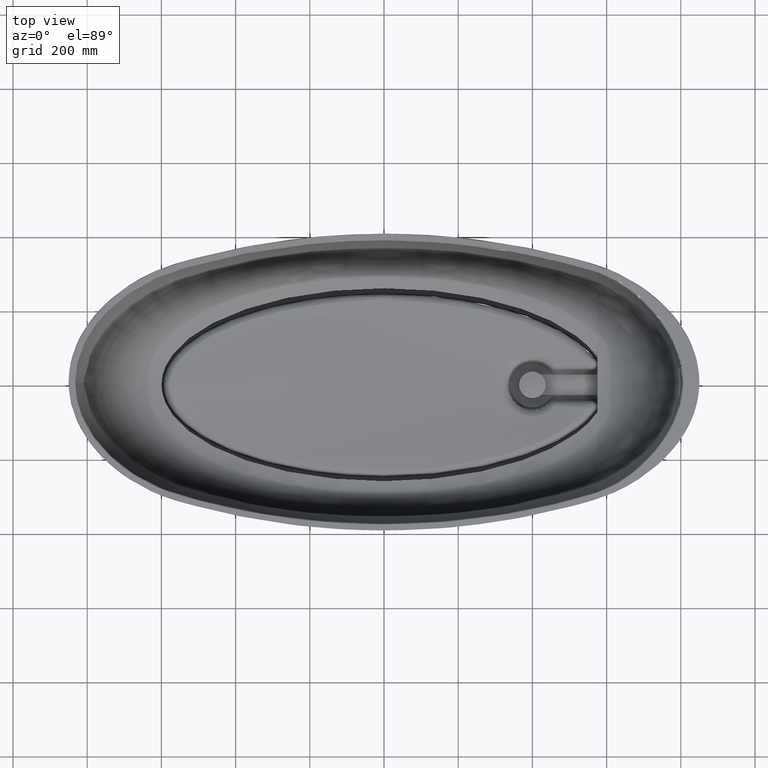
[diagram: clean part render]
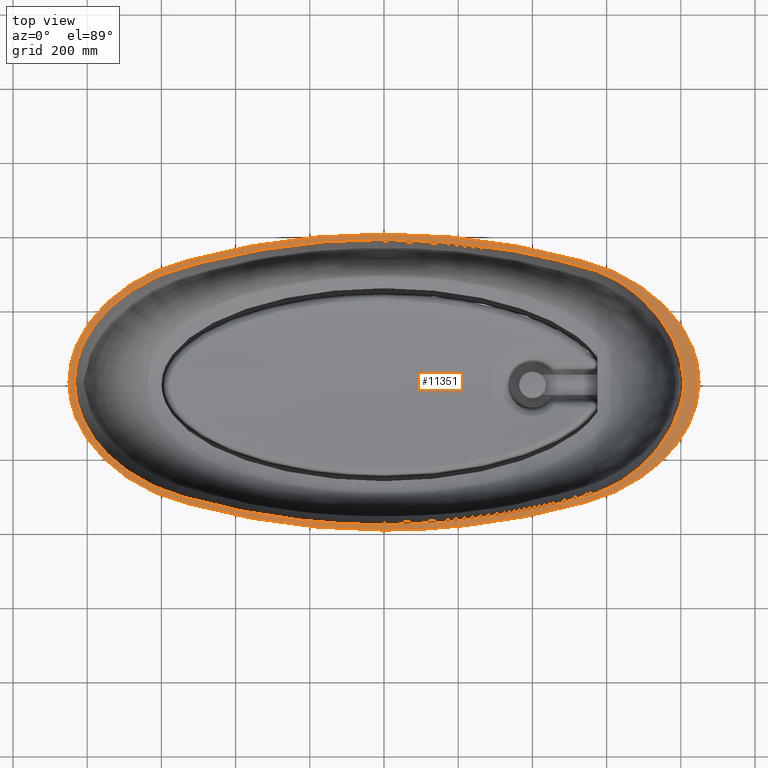
[diagram: same view with one face highlighted and labeled with its STEP entity id]
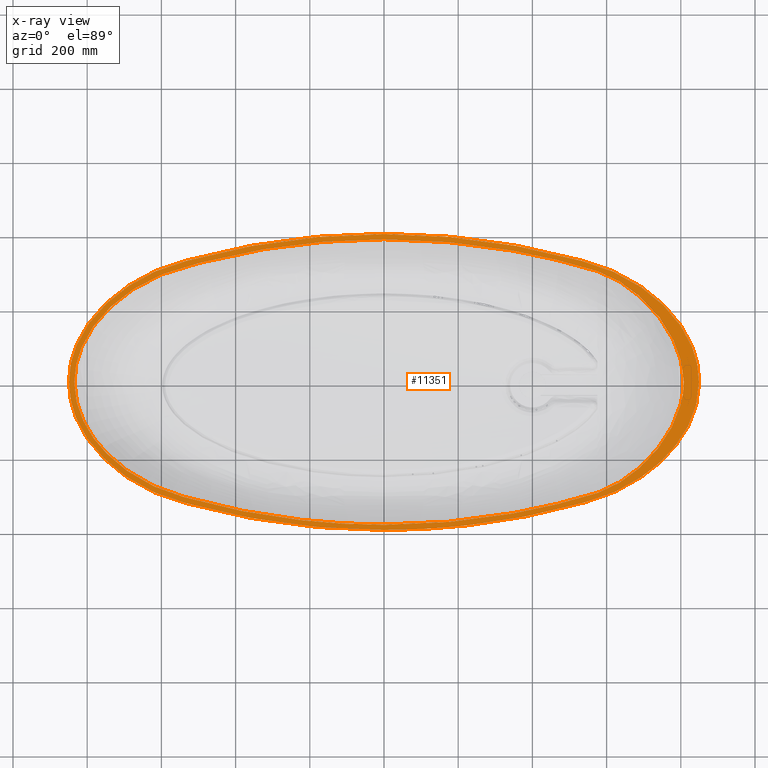
[diagram: x-ray of the same camera — body ghosted, the highlighted face saturated]
A machine part, top view. The second image highlights one B-rep face of the part: STEP entity #11351.
The next image is the same camera in x-ray: the body ghosted, the highlighted face saturated — about 0% of this face is hidden behind the body in this view.
In plain terms, the highlighted planar face has unit normal (0, 0, 1).
Its self-contained STEP definition (entity closure, byte-faithful):
#6839=(
BOUNDED_CURVE()
B_SPLINE_CURVE(3,(#442561,#442562,#442563,#442564,#442565,#442566,#442567,
#442568,#442569,#442570,#442571,#442572,#442573,#442574,#442575,#442576,
#442577,#442578,#442579,#442580,#442581,#442582,#442583,#442584,#442585,
#442586,#442587,#442588,#442589,#442590,#442591,#442592,#442593,#442594,
#442595,#442596),.UNSPECIFIED.,.F.,.F.)
B_SPLINE_CURVE_WITH_KNOTS((4,2,2,2,2,2,2,2,2,2,2,2,2,2,2,2,2,4),(-1.02250365814993,
-0.766877743612451,-0.639064786343709,-0.511251829074967,-0.479298589757782,
-0.463321970099189,-0.447345350440596,-0.415392111123411,-0.383438871806225,
-0.319532393171854,-0.287579153854669,-0.255625914537484,-0.191719435903113,
-0.159766196585927,-0.127812957268742,-0.0958597179515563,-0.0639064786343709,
0.),.UNSPECIFIED.)
CURVE()
GEOMETRIC_REPRESENTATION_ITEM()
RATIONAL_B_SPLINE_CURVE((1.,1.,1.,1.,1.,1.,1.,1.,1.,1.,1.,1.,1.,1.,1.,1.,
1.,1.,1.,1.,1.,1.,1.,1.,1.,1.,1.,1.,1.,1.,1.,1.,1.,1.,1.,1.))
REPRESENTATION_ITEM('')
);
#6843=(
BOUNDED_CURVE()
B_SPLINE_CURVE(3,(#442639,#442640,#442641,#442642,#442643,#442644,#442645,
#442646,#442647,#442648,#442649,#442650,#442651,#442652,#442653,#442654,
#442655,#442656,#442657,#442658,#442659,#442660,#442661,#442662,#442663,
#442664,#442665,#442666,#442667,#442668,#442669,#442670,#442671,#442672,
#442673,#442674),.UNSPECIFIED.,.F.,.F.)
B_SPLINE_CURVE_WITH_KNOTS((4,2,2,2,2,2,2,2,2,2,2,2,2,2,2,2,2,4),(-1.02250365814986,
-0.766877743612399,-0.639064786343665,-0.511251829074932,-0.479298589757749,
-0.463321970099157,-0.447345350440566,-0.415392111123382,-0.383438871806199,
-0.319532393171833,-0.287579153854649,-0.255625914537466,-0.191719435903099,
-0.159766196585916,-0.127812957268733,-0.0958597179515496,-0.0639064786343663,
2.22044604925031E-16),.UNSPECIFIED.)
CURVE()
GEOMETRIC_REPRESENTATION_ITEM()
RATIONAL_B_SPLINE_CURVE((1.,1.,1.,1.,1.,1.,1.,1.,1.,1.,1.,1.,1.,1.,1.,1.,
1.,1.,1.,1.,1.,1.,1.,1.,1.,1.,1.,1.,1.,1.,1.,1.,1.,1.,1.,1.))
REPRESENTATION_ITEM('')
);
#6846=(
BOUNDED_CURVE()
B_SPLINE_CURVE(3,(#442710,#442711,#442712,#442713,#442714,#442715,#442716,
#442717,#442718,#442719,#442720,#442721,#442722,#442723,#442724,#442725,
#442726,#442727,#442728,#442729,#442730,#442731,#442732,#442733,#442734,
#442735,#442736,#442737,#442738,#442739,#442740,#442741),.UNSPECIFIED.,
 .F.,.F.)
B_SPLINE_CURVE_WITH_KNOTS((4,2,2,2,2,2,2,2,2,2,2,2,2,2,2,4),(0.,0.255126123501164,
0.382689185251747,0.510252247002329,0.542143012439975,0.558088395158797,
0.57403377787762,0.637815308752911,0.669706074190557,0.701596839628202,
0.765378370503493,0.797269135941139,0.829159901378784,0.892941432254076,
0.956722963129367,1.02050449400466),.UNSPECIFIED.)
CURVE()
GEOMETRIC_REPRESENTATION_ITEM()
RATIONAL_B_SPLINE_CURVE((1.,1.,1.,1.,1.,1.,1.,1.,1.,1.,1.,1.,1.,1.,1.,1.,
1.,1.,1.,1.,1.,1.,1.,1.,1.,1.,1.,1.,1.,1.,1.,1.))
REPRESENTATION_ITEM('')
);
#6848=(
BOUNDED_CURVE()
B_SPLINE_CURVE(3,(#442774,#442775,#442776,#442777,#442778,#442779,#442780,
#442781,#442782,#442783,#442784,#442785,#442786,#442787,#442788,#442789,
#442790,#442791,#442792,#442793,#442794,#442795,#442796,#442797,#442798,
#442799,#442800,#442801,#442802,#442803,#442804,#442805),.UNSPECIFIED.,
 .F.,.F.)
B_SPLINE_CURVE_WITH_KNOTS((4,2,2,2,2,2,2,2,2,2,2,2,2,2,2,4),(-1.02050446318528,
-0.956722934233483,-0.892941405281683,-0.829159876329884,-0.797269111853984,
-0.765378347378084,-0.701596818426285,-0.669706053950385,-0.637815289474486,
-0.574033760522686,-0.558088378284736,-0.542142996046787,-0.510252231570887,
-0.382689173667288,-0.255126115763689,4.35083635785816E-11),
 .UNSPECIFIED.)
CURVE()
GEOMETRIC_REPRESENTATION_ITEM()
RATIONAL_B_SPLINE_CURVE((1.,1.,1.,1.,1.,1.,1.,1.,1.,1.,1.,1.,1.,1.,1.,1.,
1.,1.,1.,1.,1.,1.,1.,1.,1.,1.,1.,1.,1.,1.,1.,1.))
REPRESENTATION_ITEM('')
);
#6851=(
BOUNDED_CURVE()
B_SPLINE_CURVE(3,(#442841,#442842,#442843,#442844,#442845,#442846,#442847,
#442848,#442849,#442850,#442851,#442852,#442853,#442854,#442855,#442856,
#442857,#442858,#442859,#442860,#442861,#442862,#442863,#442864,#442865,
#442866,#442867,#442868,#442869,#442870,#442871,#442872),.UNSPECIFIED.,
 .F.,.F.)
B_SPLINE_CURVE_WITH_KNOTS((4,2,2,2,2,2,2,2,2,2,2,2,2,2,2,4),(-0.998006357168119,
-0.935630959845112,-0.904443261183608,-0.873255562522104,-0.810880165199097,
-0.779692466537593,-0.748504767876089,-0.686129370553082,-0.623753973230074,
-0.592566274568571,-0.576972425237819,-0.561378575907067,-0.49900317858406,
-0.374252383938045,-0.24950158929203,0.),.UNSPECIFIED.)
CURVE()
GEOMETRIC_REPRESENTATION_ITEM()
RATIONAL_B_SPLINE_CURVE((1.,1.,1.,1.,1.,1.,1.,1.,1.,1.,1.,1.,1.,1.,1.,1.,
1.,1.,1.,1.,1.,1.,1.,1.,1.,1.,1.,1.,1.,1.,1.,1.))
REPRESENTATION_ITEM('')
);
#6857=(
BOUNDED_CURVE()
B_SPLINE_CURVE(3,(#442974,#442975,#442976,#442977,#442978,#442979,#442980,
#442981,#442982,#442983,#442984,#442985,#442986,#442987,#442988,#442989,
#442990,#442991,#442992,#442993,#442994,#442995,#442996,#442997,#442998,
#442999,#443000,#443001,#443002,#443003,#443004,#443005,#443006,#443007),
 .UNSPECIFIED.,.F.,.F.)
B_SPLINE_CURVE_WITH_KNOTS((4,2,2,2,2,2,2,2,2,2,2,2,2,2,2,2,4),(-0.999648344078793,
-0.749736258035055,-0.624780215013186,-0.499824171991317,-0.46858516123585,
-0.437346150480382,-0.406107139724915,-0.374868128969448,-0.312390107458513,
-0.281151096703046,-0.249912085947579,-0.187434064436644,-0.156195053681177,
-0.12495604292571,-0.0937170321702423,-0.0624780214147751,9.61594692761025E-11),
 .UNSPECIFIED.)
CURVE()
GEOMETRIC_REPRESENTATION_ITEM()
RATIONAL_B_SPLINE_CURVE((1.,1.,1.,1.,1.,1.,1.,1.,1.,1.,1.,1.,1.,1.,1.,1.,
1.,1.,1.,1.,1.,1.,1.,1.,1.,1.,1.,1.,1.,1.,1.,1.,1.,1.))
REPRESENTATION_ITEM('')
);
#6860=(
BOUNDED_CURVE()
B_SPLINE_CURVE(3,(#443053,#443054,#443055,#443056,#443057,#443058,#443059,
#443060,#443061,#443062,#443063,#443064),.UNSPECIFIED.,.F.,.F.)
B_SPLINE_CURVE_WITH_KNOTS((4,2,2,2,2,4),(-0.584044535445331,-0.547541751979997,
-0.511038968514664,-0.438033401583998,-0.292022267722665,0.),
 .UNSPECIFIED.)
CURVE()
GEOMETRIC_REPRESENTATION_ITEM()
RATIONAL_B_SPLINE_CURVE((1.,1.,1.,1.,1.,1.,1.,1.,1.,1.,1.,1.))
REPRESENTATION_ITEM('')
);
#6864=(
BOUNDED_CURVE()
B_SPLINE_CURVE(3,(#443093,#443094,#443095,#443096,#443097,#443098,#443099,
#443100,#443101,#443102,#443103,#443104,#443105,#443106,#443107,#443108,
#443109,#443110,#443111,#443112,#443113,#443114),.UNSPECIFIED.,.F.,.F.)
B_SPLINE_CURVE_WITH_KNOTS((4,2,2,2,2,2,2,2,2,2,4),(-0.398289006919307,-0.348502881054393,
-0.323609818121937,-0.29871675518948,-0.248930629324567,-0.199144503459653,
-0.14935837759474,-0.0995722517298267,-0.07467918879737,-0.0497861258649134,
0.),.UNSPECIFIED.)
CURVE()
GEOMETRIC_REPRESENTATION_ITEM()
RATIONAL_B_SPLINE_CURVE((1.,1.,1.,1.,1.,1.,1.,1.,1.,1.,1.,1.,1.,1.,1.,1.,
1.,1.,1.,1.,1.,1.))
REPRESENTATION_ITEM('')
);
#7703=PLANE('',#34765);
#9118=FACE_BOUND('',#14215,.T.);
#11351=ADVANCED_FACE('',(#12725,#9118),#7703,.T.);
#12725=FACE_OUTER_BOUND('',#14214,.T.);
#14214=EDGE_LOOP('',(#21079,#21080,#21081,#21082));
#14215=EDGE_LOOP('',(#21083,#21084,#21085,#21086,#21087,#21088));
#21079=ORIENTED_EDGE('',*,*,#26153,.T.);
#21080=ORIENTED_EDGE('',*,*,#26146,.F.);
#21081=ORIENTED_EDGE('',*,*,#26155,.F.);
#21082=ORIENTED_EDGE('',*,*,#26150,.F.);
#21083=ORIENTED_EDGE('',*,*,#26166,.F.);
#21084=ORIENTED_EDGE('',*,*,#26172,.F.);
#21085=ORIENTED_EDGE('',*,*,#26177,.T.);
#21086=ORIENTED_EDGE('',*,*,#26176,.F.);
#21087=ORIENTED_EDGE('',*,*,#26169,.T.);
#21088=ORIENTED_EDGE('',*,*,#26158,.F.);
#26146=EDGE_CURVE('',#33926,#33927,#6839,.T.);
#26150=EDGE_CURVE('',#33930,#33931,#6843,.T.);
#26153=EDGE_CURVE('',#33930,#33927,#6846,.T.);
#26155=EDGE_CURVE('',#33931,#33926,#6848,.T.);
#26158=EDGE_CURVE('',#33934,#33935,#6851,.T.);
#26166=EDGE_CURVE('',#33941,#33934,#6857,.T.);
#26169=EDGE_CURVE('',#33943,#33935,#29667,.T.);
#26172=EDGE_CURVE('',#33945,#33941,#6860,.T.);
#26176=EDGE_CURVE('',#33943,#33939,#6864,.T.);
#26177=EDGE_CURVE('',#33945,#33939,#29668,.T.);
#29667=B_SPLINE_CURVE_WITH_KNOTS('',3,(#443026,#443027,#443028,#443029,
#443030,#443031,#443032,#443033,#443034,#443035,#443036,#443037),
 .UNSPECIFIED.,.F.,.F.,(4,2,2,2,2,4),(4.22914935526382,4.29164935526382,
4.35414935526382,4.47914935526382,4.72914935526382,5.22914935526382),
 .UNSPECIFIED.);
#29668=B_SPLINE_CURVE_WITH_KNOTS('',3,(#443115,#443116,#443117,#443118,
#443119,#443120,#443121,#443122,#443123,#443124,#443125,#443126,#443127,
#443128,#443129,#443130,#443131,#443132,#443133,#443134,#443135,#443136),
 .UNSPECIFIED.,.F.,.F.,(4,2,2,2,2,2,2,2,2,2,4),(2.,2.12499997392297,2.24999997764826,
2.37499998137355,2.49999998509884,2.56249998696148,2.62499998882413,2.74999999254942,
2.81249999441206,2.87499999627471,2.99999999318613),.UNSPECIFIED.);
#33926=VERTEX_POINT('',#439657);
#33927=VERTEX_POINT('',#439658);
#33930=VERTEX_POINT('',#439661);
#33931=VERTEX_POINT('',#439662);
#33934=VERTEX_POINT('',#439665);
#33935=VERTEX_POINT('',#439666);
#33939=VERTEX_POINT('',#439670);
#33941=VERTEX_POINT('',#439672);
#33943=VERTEX_POINT('',#439674);
#33945=VERTEX_POINT('',#439676);
#34765=AXIS2_PLACEMENT_3D('',#410489,#35026,$);
#35026=DIRECTION('',(0.,0.,1.));
#410489=CARTESIAN_POINT('',(455.426674943434,413.306186028613,451.4548366375));
#439657=CARTESIAN_POINT('',(-400.,-398.977448574713,451.454836637886));
#439658=CARTESIAN_POINT('',(-1249.02652789809,4.69712567506428E-13,451.454836637693));
#439661=CARTESIAN_POINT('',(-400.000000007277,398.97744857468,451.454836637503));
#439662=CARTESIAN_POINT('',(449.026527898092,4.79593746991707E-13,451.454836637698));
#439665=CARTESIAN_POINT('',(-1234.60668015936,-1.62792935767724E-08,451.454836637692));
#439666=CARTESIAN_POINT('',(-400.000133440148,-384.748455444678,451.454836637879));
#439670=CARTESIAN_POINT('',(407.923390415562,1.4383009651281E-12,451.454836637698));
#439672=CARTESIAN_POINT('',(-400.,384.748594174448,451.45483663751));
#439674=CARTESIAN_POINT('',(175.968141995433,-298.789230176775,451.454836637841));
#439676=CARTESIAN_POINT('',(175.968009161257,298.789573848148,451.454836637554));
#442561=CARTESIAN_POINT('',(-400.,-398.977448574713,451.454836637886));
#442562=CARTESIAN_POINT('',(-485.83738990017,-398.977448484582,451.454836637886));
#442563=CARTESIAN_POINT('',(-571.263142728372,-393.455699235959,451.454836637883));
#442564=CARTESIAN_POINT('',(-698.7848323654,-376.947115121001,451.454836637874));
#442565=CARTESIAN_POINT('',(-741.182646462386,-370.061074821679,451.454836637871));
#442566=CARTESIAN_POINT('',(-825.232799857808,-353.619304001954,451.454836637863));
#442567=CARTESIAN_POINT('',(-866.953244619778,-344.055671784235,451.454836637858));
#442568=CARTESIAN_POINT('',(-918.724235200705,-330.428095551598,451.454836637851));
#442569=CARTESIAN_POINT('',(-929.059384665699,-327.618618269266,451.45483663785));
#442570=CARTESIAN_POINT('',(-944.533556975689,-323.278552260745,451.454836637848));
#442571=CARTESIAN_POINT('',(-949.68684529441,-321.810842438203,451.454836637847));
#442572=CARTESIAN_POINT('',(-959.984006586915,-318.833922098423,451.454836637846));
#442573=CARTESIAN_POINT('',(-965.131152257248,-317.339136909575,451.454836637845));
#442574=CARTESIAN_POINT('',(-980.491619441017,-312.497885115065,451.454836637842));
#442575=CARTESIAN_POINT('',(-990.640560423329,-308.890602077676,451.454836637841));
#442576=CARTESIAN_POINT('',(-1010.54272394905,-301.036104450588,451.454836637837));
#442577=CARTESIAN_POINT('',(-1020.32743133573,-296.781492528151,451.454836637835));
#442578=CARTESIAN_POINT('',(-1049.20098453413,-283.07207509719,451.454836637828));
#442579=CARTESIAN_POINT('',(-1067.8148062692,-272.682598271028,451.454836637823));
#442580=CARTESIAN_POINT('',(-1094.74612274266,-255.151578735407,451.454836637814));
#442581=CARTESIAN_POINT('',(-1103.57864990372,-248.960884732891,451.454836637812));
#442582=CARTESIAN_POINT('',(-1120.66299506347,-236.05331646006,451.454836637806));
#442583=CARTESIAN_POINT('',(-1128.93876547512,-229.322936251475,451.454836637802));
#442584=CARTESIAN_POINT('',(-1152.93033202886,-208.264071168259,451.454836637791));
#442585=CARTESIAN_POINT('',(-1167.82398838961,-193.081987264845,451.454836637785));
#442586=CARTESIAN_POINT('',(-1188.1842585885,-168.252874097248,451.454836637772));
#442587=CARTESIAN_POINT('',(-1194.6654126086,-159.585919392763,451.454836637768));
#442588=CARTESIAN_POINT('',(-1206.6609663461,-141.77462957983,451.454836637761));
#442589=CARTESIAN_POINT('',(-1212.19216652228,-132.617854624109,451.454836637756));
#442590=CARTESIAN_POINT('',(-1222.24678429624,-113.761876236805,451.454836637746));
#442591=CARTESIAN_POINT('',(-1226.77047213053,-104.062818246226,451.454836637742));
#442592=CARTESIAN_POINT('',(-1234.7020854587,-84.0641548208726,451.454836637733));
#442593=CARTESIAN_POINT('',(-1238.09258189853,-73.7791374479979,451.454836637728));
#442594=CARTESIAN_POINT('',(-1246.21793451852,-42.7648589812608,451.454836637713));
#442595=CARTESIAN_POINT('',(-1249.02652818123,-21.6284980121077,451.454836637703));
#442596=CARTESIAN_POINT('',(-1249.02652789809,4.69712567506428E-13,451.454836637693));
#442639=CARTESIAN_POINT('',(-400.000000007277,398.97744857468,451.454836637503));
#442640=CARTESIAN_POINT('',(-314.162610108281,398.977448527434,451.454836637504));
#442641=CARTESIAN_POINT('',(-228.736857275294,393.455699240696,451.454836637507));
#442642=CARTESIAN_POINT('',(-101.215167640895,376.947115118601,451.454836637515));
#442643=CARTESIAN_POINT('',(-58.8173535446981,370.061074822847,451.454836637519));
#442644=CARTESIAN_POINT('',(25.232799855968,353.619304000746,451.454836637527));
#442645=CARTESIAN_POINT('',(66.9532446126911,344.055671784208,451.454836637532));
#442646=CARTESIAN_POINT('',(118.724235198108,330.428095551572,451.454836637539));
#442647=CARTESIAN_POINT('',(129.059384662963,327.618618267749,451.45483663754));
#442648=CARTESIAN_POINT('',(144.533556972181,323.27855226146,451.454836637542));
#442649=CARTESIAN_POINT('',(149.686845293621,321.810842438025,451.454836637543));
#442650=CARTESIAN_POINT('',(159.984006581447,318.833922098543,451.454836637544));
#442651=CARTESIAN_POINT('',(165.13115225368,317.339136909991,451.454836637544));
#442652=CARTESIAN_POINT('',(180.491619439137,312.497885114141,451.454836637547));
#442653=CARTESIAN_POINT('',(190.640560420486,308.890602079427,451.454836637549));
#442654=CARTESIAN_POINT('',(210.542723946371,301.036104448775,451.454836637553));
#442655=CARTESIAN_POINT('',(220.327431335493,296.781492526937,451.454836637555));
#442656=CARTESIAN_POINT('',(249.200984527043,283.072075099525,451.454836637562));
#442657=CARTESIAN_POINT('',(267.814806267021,272.682598270998,451.454836637567));
#442658=CARTESIAN_POINT('',(294.746122740714,255.151578735379,451.454836637575));
#442659=CARTESIAN_POINT('',(303.578649899787,248.960884733608,451.454836637578));
#442660=CARTESIAN_POINT('',(320.662995063852,236.053316459291,451.454836637584));
#442661=CARTESIAN_POINT('',(328.938765471443,229.322936254995,451.454836637588));
#442662=CARTESIAN_POINT('',(352.930332031606,208.264071161148,451.454836637598));
#442663=CARTESIAN_POINT('',(367.823988382447,193.0819872675,451.454836637605));
#442664=CARTESIAN_POINT('',(388.184258590481,168.252874095894,451.454836637617));
#442665=CARTESIAN_POINT('',(394.665412607674,159.585919390812,451.454836637621));
#442666=CARTESIAN_POINT('',(406.660966345322,141.774629581754,451.45483663763));
#442667=CARTESIAN_POINT('',(412.192166515647,132.61785462358,451.454836637634));
#442668=CARTESIAN_POINT('',(422.246784301592,113.761876237314,451.454836637644));
#442669=CARTESIAN_POINT('',(426.770472126442,104.062818249352,451.454836637648));
#442670=CARTESIAN_POINT('',(434.702085461889,84.0641548177308,451.454836637657));
#442671=CARTESIAN_POINT('',(438.092581897018,73.7791374493283,451.454836637662));
#442672=CARTESIAN_POINT('',(446.217934520726,42.7648589785888,451.454836637677));
#442673=CARTESIAN_POINT('',(449.026528168547,21.628498014116,451.454836637688));
#442674=CARTESIAN_POINT('',(449.026527898092,4.79593746991707E-13,451.454836637698));
#442710=CARTESIAN_POINT('',(-400.000000007277,398.97744857468,451.454836637503));
#442711=CARTESIAN_POINT('',(-485.336037202197,398.977448480339,451.454836637503));
#442712=CARTESIAN_POINT('',(-570.218976882794,393.519748025902,451.454836637506));
#442713=CARTESIAN_POINT('',(-696.866617712653,377.229986317543,451.454836637513));
#442714=CARTESIAN_POINT('',(-739.050464502512,370.424075500515,451.454836637517));
#442715=CARTESIAN_POINT('',(-822.617700660098,354.181971218096,451.454836637524));
#442716=CARTESIAN_POINT('',(-864.033698577398,344.746722064535,451.454836637528));
#442717=CARTESIAN_POINT('',(-915.350306510789,331.331848792098,451.454836637534));
#442718=CARTESIAN_POINT('',(-925.590873711841,328.567530009854,451.454836637535));
#442719=CARTESIAN_POINT('',(-940.91767487828,324.299328545568,451.454836637537));
#442720=CARTESIAN_POINT('',(-946.020931241166,322.856298861897,451.454836637538));
#442721=CARTESIAN_POINT('',(-956.216163109638,319.929911815855,451.454836637539));
#442722=CARTESIAN_POINT('',(-961.314888204384,318.470683410467,451.45483663754));
#442723=CARTESIAN_POINT('',(-986.685150064676,310.733531505918,451.454836637544));
#442724=CARTESIAN_POINT('',(-1006.57153975496,303.078754473459,451.454836637548));
#442725=CARTESIAN_POINT('',(-1035.81791682078,289.511693659049,451.454836637554));
#442726=CARTESIAN_POINT('',(-1045.49587784694,284.622120718935,451.454836637557));
#442727=CARTESIAN_POINT('',(-1064.51967430623,274.18576137792,451.454836637562));
#442728=CARTESIAN_POINT('',(-1073.81845137085,268.666436410409,451.454836637563));
#442729=CARTESIAN_POINT('',(-1101.07461838357,251.203894211533,451.454836637571));
#442730=CARTESIAN_POINT('',(-1118.3991105078,238.366377247278,451.454836637578));
#442731=CARTESIAN_POINT('',(-1142.96211847288,217.09833698981,451.454836637588));
#442732=CARTESIAN_POINT('',(-1150.92565355357,209.651836026712,451.454836637592));
#442733=CARTESIAN_POINT('',(-1166.09082467746,194.253490620044,451.454836637599));
#442734=CARTESIAN_POINT('',(-1173.32180081764,186.279095323113,451.454836637603));
#442735=CARTESIAN_POINT('',(-1193.88589584307,161.472314098203,451.454836637615));
#442736=CARTESIAN_POINT('',(-1206.10793855592,143.770232297164,451.454836637623));
#442737=CARTESIAN_POINT('',(-1226.81248547542,105.438941591778,451.454836637642));
#442738=CARTESIAN_POINT('',(-1234.94840378008,85.3953859193942,451.454836637649));
#442739=CARTESIAN_POINT('',(-1246.07300896987,43.6832907881113,451.454836637669));
#442740=CARTESIAN_POINT('',(-1249.02652817122,21.7820877543686,451.454836637682));
#442741=CARTESIAN_POINT('',(-1249.02652789809,4.69712567506428E-13,451.454836637693));
#442774=CARTESIAN_POINT('',(449.026527898092,4.79593746991707E-13,451.454836637698));
#442775=CARTESIAN_POINT('',(449.026528166307,-21.7820922265913,451.454836637709));
#442776=CARTESIAN_POINT('',(446.073008373305,-43.6832940481231,451.454836637719));
#442777=CARTESIAN_POINT('',(434.948402773977,-85.3953886666669,451.454836637739));
#442778=CARTESIAN_POINT('',(426.812479643762,-105.438954102389,451.454836637748));
#442779=CARTESIAN_POINT('',(406.107933760776,-143.770239458155,451.454836637766));
#442780=CARTESIAN_POINT('',(393.885890817424,-161.47232116642,451.454836637776));
#442781=CARTESIAN_POINT('',(373.321793054759,-186.279104182862,451.454836637788));
#442782=CARTESIAN_POINT('',(366.090815624362,-194.253500412041,451.454836637791));
#442783=CARTESIAN_POINT('',(350.925640999586,-209.651848171449,451.454836637798));
#442784=CARTESIAN_POINT('',(342.962104406048,-217.098349805316,451.454836637802));
#442785=CARTESIAN_POINT('',(318.399095978973,-238.366388551976,451.454836637812));
#442786=CARTESIAN_POINT('',(301.074602448533,-251.203905627807,451.454836637818));
#442787=CARTESIAN_POINT('',(273.818431290287,-268.666448670282,451.454836637827));
#442788=CARTESIAN_POINT('',(264.519652502823,-274.185774041351,451.454836637829));
#442789=CARTESIAN_POINT('',(245.495851817835,-284.622134293757,451.454836637834));
#442790=CARTESIAN_POINT('',(235.817893479238,-289.51170509727,451.454836637836));
#442791=CARTESIAN_POINT('',(206.571519261883,-303.078762755845,451.454836637842));
#442792=CARTESIAN_POINT('',(186.685131100296,-310.733538290917,451.454836637846));
#442793=CARTESIAN_POINT('',(161.31487046932,-318.470688567643,451.45483663785));
#442794=CARTESIAN_POINT('',(156.2161456538,-319.929916874105,451.454836637851));
#442795=CARTESIAN_POINT('',(146.020914326026,-322.85630366757,451.454836637852));
#442796=CARTESIAN_POINT('',(140.917658226887,-324.299333229586,451.454836637853));
#442797=CARTESIAN_POINT('',(125.590857830996,-328.567534335812,451.454836637855));
#442798=CARTESIAN_POINT('',(115.350291114584,-331.331852901157,451.454836637856));
#442799=CARTESIAN_POINT('',(64.0336854787075,-344.746725147148,451.454836637862));
#442800=CARTESIAN_POINT('',(22.617688944814,-354.181973737036,451.454836637866));
#442801=CARTESIAN_POINT('',(-60.9495453923897,-370.424077180023,451.454836637874));
#442802=CARTESIAN_POINT('',(-103.133391087507,-377.22998760543,451.454836637877));
#442803=CARTESIAN_POINT('',(-229.781027777086,-393.519748311257,451.454836637884));
#442804=CARTESIAN_POINT('',(-314.663965089608,-398.977448480364,451.454836637886));
#442805=CARTESIAN_POINT('',(-400.,-398.977448574713,451.454836637886));
#442841=CARTESIAN_POINT('',(-1234.60668015936,-1.62792935767724E-08,451.454836637692));
#442842=CARTESIAN_POINT('',(-1234.60668112688,-21.3281265179935,451.454836637702));
#442843=CARTESIAN_POINT('',(-1231.59834736862,-42.7438308264112,451.454836637712));
#442844=CARTESIAN_POINT('',(-1223.14402071213,-73.2657821235764,451.454836637727));
#442845=CARTESIAN_POINT('',(-1219.68084407669,-83.2203381894608,451.454836637732));
#442846=CARTESIAN_POINT('',(-1211.55288720976,-102.720710140655,451.454836637741));
#442847=CARTESIAN_POINT('',(-1206.85850077565,-112.316763702203,451.454836637746));
#442848=CARTESIAN_POINT('',(-1191.2742491506,-140.148737679271,451.454836637759));
#442849=CARTESIAN_POINT('',(-1179.04418107221,-157.261831778479,451.454836637767));
#442850=CARTESIAN_POINT('',(-1158.51176275908,-181.218339386987,451.454836637779));
#442851=CARTESIAN_POINT('',(-1151.29854878412,-188.914778102509,451.454836637783));
#442852=CARTESIAN_POINT('',(-1136.18114990545,-203.766478415174,451.45483663779));
#442853=CARTESIAN_POINT('',(-1128.27272668607,-210.92081114729,451.454836637793));
#442854=CARTESIAN_POINT('',(-1103.93685223959,-231.309705933069,451.454836637803));
#442855=CARTESIAN_POINT('',(-1086.78934256174,-243.602201962261,451.454836637809));
#442856=CARTESIAN_POINT('',(-1050.82965790318,-265.843920128873,451.45483663782));
#442857=CARTESIAN_POINT('',(-1031.92620527812,-275.809083084956,451.454836637825));
#442858=CARTESIAN_POINT('',(-1003.18820272944,-288.571237254199,451.454836637831));
#442859=CARTESIAN_POINT('',(-993.512469102349,-292.481529839761,451.454836637833));
#442860=CARTESIAN_POINT('',(-978.851361891723,-297.820962067245,451.454836637835));
#442861=CARTESIAN_POINT('',(-973.939638386548,-299.512736643415,451.454836637836));
#442862=CARTESIAN_POINT('',(-964.066027003234,-302.717400482347,451.454836637838));
#442863=CARTESIAN_POINT('',(-959.097877918068,-304.207962391446,451.454836637838));
#442864=CARTESIAN_POINT('',(-934.206330817431,-311.479614002284,451.454836637842));
#442865=CARTESIAN_POINT('',(-914.205694323794,-316.985272614734,451.454836637845));
#442866=CARTESIAN_POINT('',(-853.936558724133,-332.549324525428,451.454836637853));
#442867=CARTESIAN_POINT('',(-813.403940204235,-341.665872520374,451.454836637856));
#442868=CARTESIAN_POINT('',(-731.621522490829,-357.341514219376,451.454836637864));
#442869=CARTESIAN_POINT('',(-690.355387346235,-363.897695086461,451.454836637867));
#442870=CARTESIAN_POINT('',(-566.475450681274,-379.562003352114,451.454836637875));
#442871=CARTESIAN_POINT('',(-483.452475931515,-384.748467387287,451.454836637878));
#442872=CARTESIAN_POINT('',(-400.000133440148,-384.748455444678,451.454836637879));
#442974=CARTESIAN_POINT('',(-400.,384.748594174448,451.45483663751));
#442975=CARTESIAN_POINT('',(-483.96030155477,384.748594688717,451.45483663751));
#442976=CARTESIAN_POINT('',(-567.531857286764,379.498871052266,451.454836637512));
#442977=CARTESIAN_POINT('',(-692.294582842089,363.616347250954,451.454836637519));
#442978=CARTESIAN_POINT('',(-733.786515718386,356.978251101128,451.454836637522));
#442979=CARTESIAN_POINT('',(-816.047021248931,341.104578304494,451.45483663753));
#442980=CARTESIAN_POINT('',(-856.881610533675,331.86082354178,451.454836637534));
#442981=CARTESIAN_POINT('',(-907.557072459205,318.680459022732,451.45483663754));
#442982=CARTESIAN_POINT('',(-917.673707923525,315.962801181775,451.454836637541));
#442983=CARTESIAN_POINT('',(-937.870016731119,310.364102184427,451.454836637544));
#442984=CARTESIAN_POINT('',(-947.952117270315,307.493789943362,451.454836637545));
#442985=CARTESIAN_POINT('',(-968.069731490155,301.547237977882,451.454836637548));
#442986=CARTESIAN_POINT('',(-978.066164353981,298.193709106418,451.45483663755));
#442987=CARTESIAN_POINT('',(-997.680422087294,290.830573540053,451.454836637553));
#442988=CARTESIAN_POINT('',(-1007.32239118863,286.820949472431,451.454836637555));
#442989=CARTESIAN_POINT('',(-1035.77802544777,273.857975475221,451.454836637561));
#442990=CARTESIAN_POINT('',(-1054.12586572381,263.97935913958,451.454836637566));
#442991=CARTESIAN_POINT('',(-1080.6915486308,247.262381111972,451.454836637574));
#442992=CARTESIAN_POINT('',(-1089.41546349486,241.34808649328,451.454836637576));
#442993=CARTESIAN_POINT('',(-1106.33916093739,228.969933343271,451.454836637582));
#442994=CARTESIAN_POINT('',(-1114.54193235161,222.509168883206,451.454836637585));
#442995=CARTESIAN_POINT('',(-1138.33841788159,202.275531062024,451.454836637595));
#442996=CARTESIAN_POINT('',(-1153.13433625599,187.666029291152,451.454836637602));
#442997=CARTESIAN_POINT('',(-1173.40802477788,163.738122480875,451.454836637613));
#442998=CARTESIAN_POINT('',(-1179.87275452139,155.37884502217,451.454836637617));
#442999=CARTESIAN_POINT('',(-1191.89040966026,138.128922853969,451.454836637626));
#443000=CARTESIAN_POINT('',(-1197.43981620909,129.253513226032,451.45483663763));
#443001=CARTESIAN_POINT('',(-1207.54211669309,110.959455577103,451.454836637638));
#443002=CARTESIAN_POINT('',(-1212.09527981149,101.540954300456,451.454836637643));
#443003=CARTESIAN_POINT('',(-1220.09131470292,82.0986880842406,451.454836637652));
#443004=CARTESIAN_POINT('',(-1223.52482981732,72.0655618254991,451.454836637657));
#443005=CARTESIAN_POINT('',(-1231.75388621762,41.8024806612879,451.454836637672));
#443006=CARTESIAN_POINT('',(-1234.60667982597,21.1551482410523,451.454836637682));
#443007=CARTESIAN_POINT('',(-1234.60668015936,-1.62792935767724E-08,451.454836637692));
#443026=CARTESIAN_POINT('',(175.968141995433,-298.789230176775,451.454836637841));
#443027=CARTESIAN_POINT('',(164.299274596369,-302.794338653128,451.454836637843));
#443028=CARTESIAN_POINT('',(152.535491533483,-306.163465494936,451.454836637845));
#443029=CARTESIAN_POINT('',(129.001873125595,-312.861165911377,451.454836637848));
#443030=CARTESIAN_POINT('',(117.218126633998,-316.096527961239,451.45483663785));
#443031=CARTESIAN_POINT('',(81.8162448597944,-325.463285794915,451.454836637854));
#443032=CARTESIAN_POINT('',(58.1476809909021,-331.256785245897,451.454836637856));
#443033=CARTESIAN_POINT('',(-13.0583217043137,-347.295100776972,451.454836637864));
#443034=CARTESIAN_POINT('',(-60.7959138334829,-356.198791276954,451.454836637868));
#443035=CARTESIAN_POINT('',(-204.803566717993,-377.583799264564,451.454836637878));
#443036=CARTESIAN_POINT('',(-301.867069345317,-384.748665933143,451.454836637881));
#443037=CARTESIAN_POINT('',(-400.000133440148,-384.748455444678,451.454836637879));
#443053=CARTESIAN_POINT('',(175.968009161257,298.789573848148,451.454836637554));
#443054=CARTESIAN_POINT('',(164.391907329353,302.762825410098,451.454836637552));
#443055=CARTESIAN_POINT('',(152.681281950653,306.120936581801,451.45483663755));
#443056=CARTESIAN_POINT('',(129.245782942082,312.793291073669,451.454836637547));
#443057=CARTESIAN_POINT('',(117.503145980031,316.019225393102,451.454836637545));
#443058=CARTESIAN_POINT('',(82.200507826078,325.366012081709,451.454836637541));
#443059=CARTESIAN_POINT('',(58.5660911221055,331.157229158191,451.454836637538));
#443060=CARTESIAN_POINT('',(-12.6351696691976,347.210794922202,451.45483663753));
#443061=CARTESIAN_POINT('',(-60.4997961295043,356.154069438246,451.454836637525));
#443062=CARTESIAN_POINT('',(-205.29586941562,377.658584789087,451.454836637514));
#443063=CARTESIAN_POINT('',(-302.420505068483,384.748594764874,451.454836637511));
#443064=CARTESIAN_POINT('',(-400.,384.748594174448,451.45483663751));
#443093=CARTESIAN_POINT('',(175.968141995433,-298.789230176775,451.454836637841));
#443094=CARTESIAN_POINT('',(191.87256344837,-293.330434800956,451.454836637838));
#443095=CARTESIAN_POINT('',(207.061262497001,-286.47667629815,451.454836637835));
#443096=CARTESIAN_POINT('',(228.988683117561,-274.543091713049,451.454836637829));
#443097=CARTESIAN_POINT('',(236.153137672844,-270.284760844857,451.454836637827));
#443098=CARTESIAN_POINT('',(250.209484927375,-261.239745100304,451.454836637823));
#443099=CARTESIAN_POINT('',(257.11713850952,-256.439384542518,451.45483663782));
#443100=CARTESIAN_POINT('',(277.211409342093,-241.451575479762,451.454836637813));
#443101=CARTESIAN_POINT('',(289.854336973032,-230.65582158672,451.454836637808));
#443102=CARTESIAN_POINT('',(313.800042252648,-207.634088539004,451.454836637797));
#443103=CARTESIAN_POINT('',(325.10277622715,-195.408062779293,451.454836637791));
#443104=CARTESIAN_POINT('',(346.22029762791,-169.368055613345,451.454836637779));
#443105=CARTESIAN_POINT('',(355.834371768523,-155.744845272169,451.454836637773));
#443106=CARTESIAN_POINT('',(373.056167239956,-127.411104558596,451.454836637759));
#443107=CARTESIAN_POINT('',(380.717089827147,-112.700705669233,451.454836637752));
#443108=CARTESIAN_POINT('',(390.399706954801,-89.6002209517238,451.454836637741));
#443109=CARTESIAN_POINT('',(393.329389688914,-81.6850151152992,451.454836637737));
#443110=CARTESIAN_POINT('',(398.413939113608,-65.7486093503904,451.454836637729));
#443111=CARTESIAN_POINT('',(400.579881541974,-57.7107965261407,451.454836637726));
#443112=CARTESIAN_POINT('',(405.905211031592,-33.3804818862379,451.454836637714));
#443113=CARTESIAN_POINT('',(407.923409488688,-16.8748115897944,451.454836637706));
#443114=CARTESIAN_POINT('',(407.923390415562,1.4383009651281E-12,451.454836637698));
#443115=CARTESIAN_POINT('',(175.968009161257,298.789573848148,451.454836637554));
#443116=CARTESIAN_POINT('',(191.878337381525,293.328165202601,451.454836637556));
#443117=CARTESIAN_POINT('',(207.014717850353,286.493213653272,451.45483663756));
#443118=CARTESIAN_POINT('',(236.085146420696,270.689134356439,451.454836637567));
#443119=CARTESIAN_POINT('',(250.012710179156,261.708496747868,451.454836637572));
#443120=CARTESIAN_POINT('',(276.7742645488,241.806103535261,451.454836637581));
#443121=CARTESIAN_POINT('',(289.623669483522,230.863616586955,451.454836637587));
#443122=CARTESIAN_POINT('',(313.678798262969,207.763979611655,451.454836637598));
#443123=CARTESIAN_POINT('',(324.95130333449,195.568068933789,451.454836637604));
#443124=CARTESIAN_POINT('',(340.65510528864,176.24314162382,451.454836637613));
#443125=CARTESIAN_POINT('',(345.684390892478,169.6258143826,451.454836637616));
#443126=CARTESIAN_POINT('',(355.309622376374,156.020358024736,451.454836637623));
#443127=CARTESIAN_POINT('',(359.917105736884,149.012829012671,451.454836637627));
#443128=CARTESIAN_POINT('',(372.986842752225,127.553834380232,451.454836637637));
#443129=CARTESIAN_POINT('',(380.664066699479,112.796533920476,451.454836637644));
#443130=CARTESIAN_POINT('',(390.30402947061,89.8433602455591,451.454836637655));
#443131=CARTESIAN_POINT('',(393.198362017103,82.0533352633499,451.454836637659));
#443132=CARTESIAN_POINT('',(398.292116685268,66.1705479992623,451.454836637666));
#443133=CARTESIAN_POINT('',(400.499261506297,58.0409078955088,451.45483663767));
#443134=CARTESIAN_POINT('',(405.906430757794,33.4494544792093,451.454836637682));
#443135=CARTESIAN_POINT('',(407.9234060275,16.8530770476827,451.45483663769));
#443136=CARTESIAN_POINT('',(407.923390415565,2.75603181218361E-06,451.454836637698));